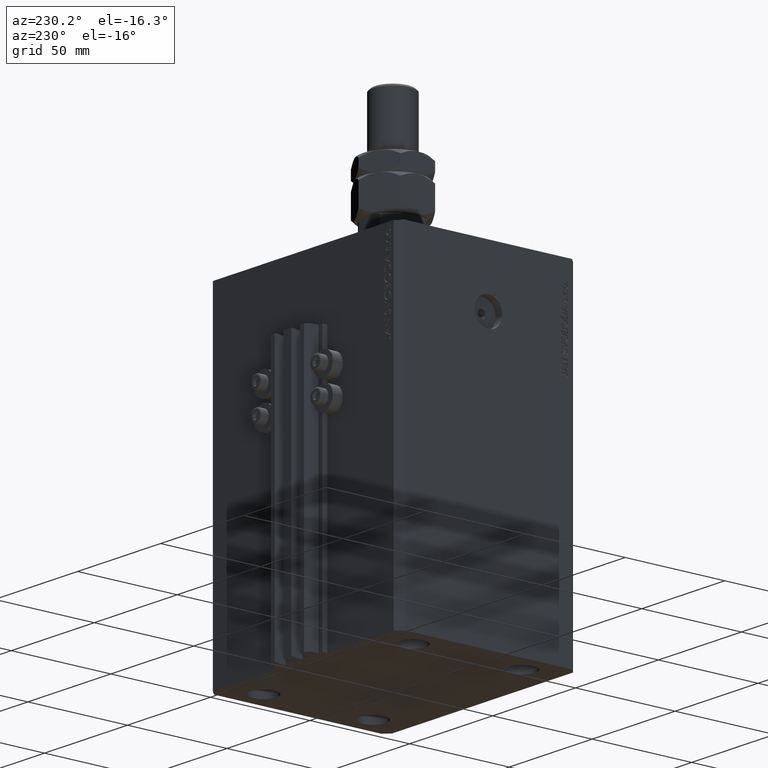
[diagram: clean part render]
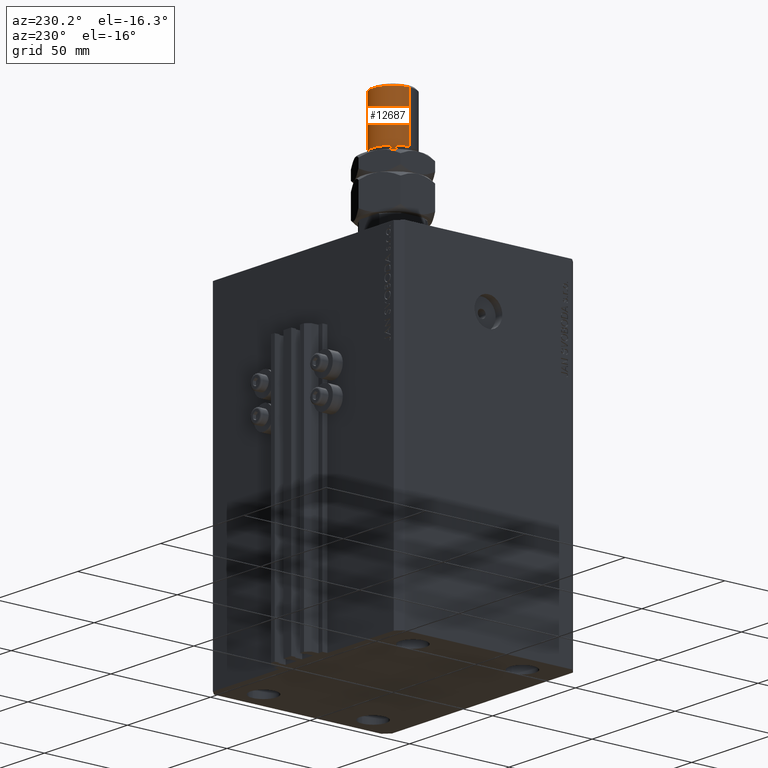
[diagram: same view with one face highlighted and labeled with its STEP entity id]
A machine part, auxiliary view. The second image highlights one B-rep face of the part: STEP entity #12687.
In plain terms, the highlighted cylindrical surface (edge-blend (fillet) strip) has radius 10 mm, axis along (-0, -0, -1).
Its self-contained STEP definition (entity closure, byte-faithful):
#786 = LINE ( 'NONE', #5219, #42732 ) ;
#1034 = DIRECTION ( 'NONE',  ( -1.000000000000000000, 0.000000000000000000, 0.000000000000000000 ) ) ;
#5219 = CARTESIAN_POINT ( 'NONE',  ( -10.00000000000000000, 0.000000000000000000, 53.00000000000000711 ) ) ;
#6161 = EDGE_CURVE ( 'NONE', #9521, #37842, #786, .T. ) ;
#8916 = CYLINDRICAL_SURFACE ( 'NONE', #30356, 10.00000000000000000 ) ;
#9521 = VERTEX_POINT ( 'NONE', #20921 ) ;
#11377 = EDGE_LOOP ( 'NONE', ( #42691, #13472, #21213, #26470 ) ) ;
#11458 = AXIS2_PLACEMENT_3D ( 'NONE', #40062, #12671, #35367 ) ;
#12671 = DIRECTION ( 'NONE',  ( 0.000000000000000000, 0.000000000000000000, -1.000000000000000000 ) ) ;
#12687 = ADVANCED_FACE ( 'NONE', ( #19557 ), #8916, .T. ) ;
#13199 = CARTESIAN_POINT ( 'NONE',  ( 10.00000000000000000, 1.224646799147353059E-15, 53.00000000000000711 ) ) ;
#13472 = ORIENTED_EDGE ( 'NONE', *, *, #41741, .T. ) ;
#14607 = EDGE_CURVE ( 'NONE', #9521, #16239, #45382, .T. ) ;
#14634 = CIRCLE ( 'NONE', #17770, 10.00000000000000000 ) ;
#16239 = VERTEX_POINT ( 'NONE', #23987 ) ;
#16516 = VERTEX_POINT ( 'NONE', #20461 ) ;
#17770 = AXIS2_PLACEMENT_3D ( 'NONE', #29445, #32892, #21313 ) ;
#18734 = EDGE_CURVE ( 'NONE', #16516, #37842, #14634, .T. ) ;
#19557 = FACE_OUTER_BOUND ( 'NONE', #11377, .T. ) ;
#20461 = CARTESIAN_POINT ( 'NONE',  ( 10.00000000000000000, 1.224646799147353059E-15, 28.00000000000002487 ) ) ;
#20921 = CARTESIAN_POINT ( 'NONE',  ( -10.00000000000000000, 0.000000000000000000, 52.00000000000004974 ) ) ;
#21213 = ORIENTED_EDGE ( 'NONE', *, *, #18734, .T. ) ;
#21313 = DIRECTION ( 'NONE',  ( 1.000000000000000000, 0.000000000000000000, 0.000000000000000000 ) ) ;
#21356 = DIRECTION ( 'NONE',  ( -0.000000000000000000, -0.000000000000000000, -1.000000000000000000 ) ) ;
#23987 = CARTESIAN_POINT ( 'NONE',  ( 10.00000000000000000, 1.224646799147353059E-15, 52.00000000000004974 ) ) ;
#25355 = VECTOR ( 'NONE', #21356, 1000.000000000000000 ) ;
#26470 = ORIENTED_EDGE ( 'NONE', *, *, #6161, .F. ) ;
#29445 = CARTESIAN_POINT ( 'NONE',  ( 0.000000000000000000, 0.000000000000000000, 28.00000000000002487 ) ) ;
#30356 = AXIS2_PLACEMENT_3D ( 'NONE', #45724, #41775, #1034 ) ;
#30894 = DIRECTION ( 'NONE',  ( -0.000000000000000000, -0.000000000000000000, -1.000000000000000000 ) ) ;
#32892 = DIRECTION ( 'NONE',  ( -0.000000000000000000, -0.000000000000000000, 1.000000000000000000 ) ) ;
#35367 = DIRECTION ( 'NONE',  ( 1.000000000000000000, 0.000000000000000000, 0.000000000000000000 ) ) ;
#35841 = CARTESIAN_POINT ( 'NONE',  ( -10.00000000000000000, 0.000000000000000000, 28.00000000000002487 ) ) ;
#36155 = LINE ( 'NONE', #13199, #25355 ) ;
#37842 = VERTEX_POINT ( 'NONE', #35841 ) ;
#40062 = CARTESIAN_POINT ( 'NONE',  ( 0.000000000000000000, 0.000000000000000000, 52.00000000000004974 ) ) ;
#41741 = EDGE_CURVE ( 'NONE', #16239, #16516, #36155, .T. ) ;
#41775 = DIRECTION ( 'NONE',  ( -0.000000000000000000, -0.000000000000000000, -1.000000000000000000 ) ) ;
#42691 = ORIENTED_EDGE ( 'NONE', *, *, #14607, .T. ) ;
#42732 = VECTOR ( 'NONE', #30894, 1000.000000000000000 ) ;
#45382 = CIRCLE ( 'NONE', #11458, 10.00000000000000000 ) ;
#45724 = CARTESIAN_POINT ( 'NONE',  ( 0.000000000000000000, 0.000000000000000000, 53.00000000000000711 ) ) ;